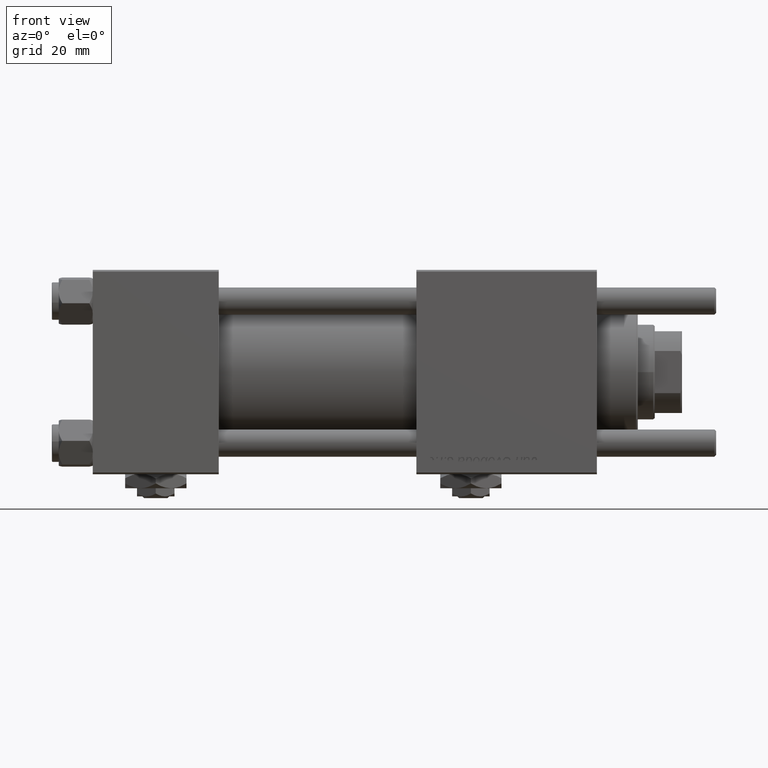
[diagram: clean part render]
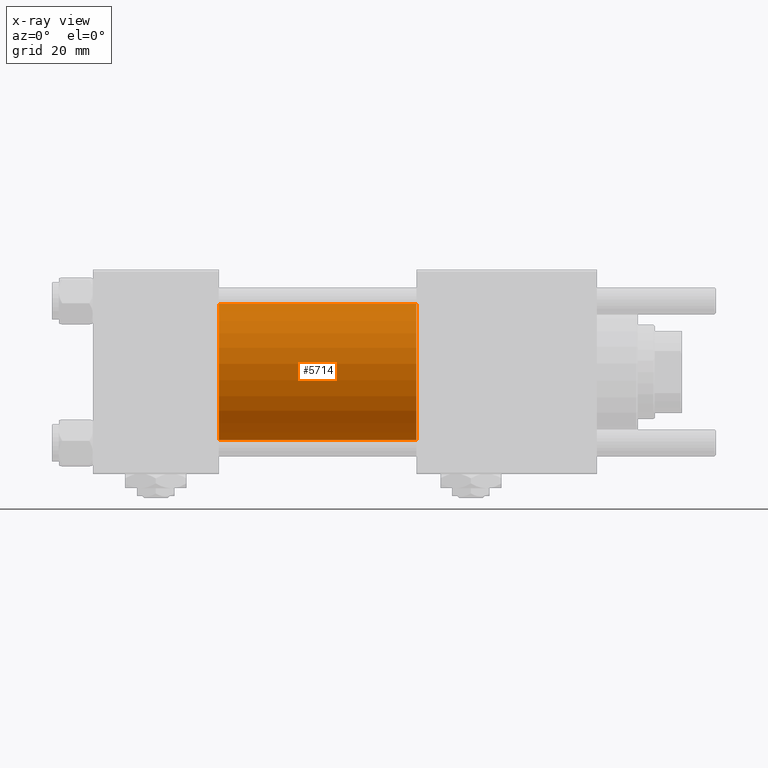
[diagram: x-ray — body ghosted, one internal face saturated and labeled with its STEP entity id]
A machine part, front view, then the same camera in x-ray: the body is ghosted and one INTERNAL B-rep face — a face not visible from any outside direction — is saturated and labeled: STEP entity #5714.
In plain terms, the highlighted cylindrical surface (partial cylindrical patch) has radius 20 mm, axis along (-1, -0, -0).
Its self-contained STEP definition (entity closure, byte-faithful):
#599 = EDGE_CURVE ( 'NONE', #43028, #57982, #22265, .T. ) ;
#3905 = VERTEX_POINT ( 'NONE', #48992 ) ;
#4352 = DIRECTION ( 'NONE',  ( 0.000000000000000000, 0.000000000000000000, -1.000000000000000000 ) ) ;
#5166 = DIRECTION ( 'NONE',  ( 1.000000000000000000, 0.000000000000000000, 0.000000000000000000 ) ) ;
#5545 = EDGE_LOOP ( 'NONE', ( #28153, #34586, #45280, #11302 ) ) ;
#5714 = ADVANCED_FACE ( 'NONE', ( #15540 ), #24780, .F. ) ;
#6184 = AXIS2_PLACEMENT_3D ( 'NONE', #42665, #42958, #19148 ) ;
#7412 = EDGE_CURVE ( 'NONE', #43908, #43028, #50233, .T. ) ;
#9710 = DIRECTION ( 'NONE',  ( -1.000000000000000000, -0.000000000000000000, -0.000000000000000000 ) ) ;
#11302 = ORIENTED_EDGE ( 'NONE', *, *, #7412, .F. ) ;
#15540 = FACE_OUTER_BOUND ( 'NONE', #5545, .T. ) ;
#17650 = CARTESIAN_POINT ( 'NONE',  ( 95.00000000000000000, -2.602085213965210642E-15, 0.000000000000000000 ) ) ;
#19148 = DIRECTION ( 'NONE',  ( 0.000000000000000000, 0.000000000000000000, 1.000000000000000000 ) ) ;
#22265 = CIRCLE ( 'NONE', #35626, 20.00000000000000000 ) ;
#23465 = CARTESIAN_POINT ( 'NONE',  ( 37.00000000000000000, -2.602085213965210642E-15, 20.00000000000000000 ) ) ;
#23690 = DIRECTION ( 'NONE',  ( 1.000000000000000000, 0.000000000000000000, 0.000000000000000000 ) ) ;
#24780 = CYLINDRICAL_SURFACE ( 'NONE', #6184, 20.00000000000000000 ) ;
#28153 = ORIENTED_EDGE ( 'NONE', *, *, #56934, .T. ) ;
#29581 = DIRECTION ( 'NONE',  ( -1.000000000000000000, -0.000000000000000000, -0.000000000000000000 ) ) ;
#30151 = CIRCLE ( 'NONE', #31082, 20.00000000000000000 ) ;
#31082 = AXIS2_PLACEMENT_3D ( 'NONE', #17650, #5166, #45372 ) ;
#32621 = CARTESIAN_POINT ( 'NONE',  ( 37.00000000000000000, -2.602085213965210642E-15, 0.000000000000000000 ) ) ;
#34586 = ORIENTED_EDGE ( 'NONE', *, *, #52991, .T. ) ;
#35626 = AXIS2_PLACEMENT_3D ( 'NONE', #32621, #23690, #4352 ) ;
#37697 = CARTESIAN_POINT ( 'NONE',  ( 95.00000000000000000, -2.602085213965210642E-15, 20.00000000000000000 ) ) ;
#42665 = CARTESIAN_POINT ( 'NONE',  ( 95.00000000000000000, -2.602085213965210642E-15, 0.000000000000000000 ) ) ;
#42958 = DIRECTION ( 'NONE',  ( -1.000000000000000000, -0.000000000000000000, -0.000000000000000000 ) ) ;
#43028 = VERTEX_POINT ( 'NONE', #23465 ) ;
#43908 = VERTEX_POINT ( 'NONE', #47891 ) ;
#45280 = ORIENTED_EDGE ( 'NONE', *, *, #599, .F. ) ;
#45372 = DIRECTION ( 'NONE',  ( 0.000000000000000000, 0.000000000000000000, -1.000000000000000000 ) ) ;
#47482 = CARTESIAN_POINT ( 'NONE',  ( 95.00000000000000000, -1.527916156705046464E-16, -20.00000000000000000 ) ) ;
#47891 = CARTESIAN_POINT ( 'NONE',  ( 95.00000000000000000, -2.602085213965210642E-15, 20.00000000000000000 ) ) ;
#48058 = VECTOR ( 'NONE', #9710, 1000.000000000000000 ) ;
#48992 = CARTESIAN_POINT ( 'NONE',  ( 95.00000000000000000, -1.527916156705046464E-16, -20.00000000000000000 ) ) ;
#49889 = LINE ( 'NONE', #47482, #54820 ) ;
#50233 = LINE ( 'NONE', #37697, #48058 ) ;
#52991 = EDGE_CURVE ( 'NONE', #3905, #57982, #49889, .T. ) ;
#53293 = CARTESIAN_POINT ( 'NONE',  ( 37.00000000000000000, -1.527916156705046464E-16, -20.00000000000000000 ) ) ;
#54820 = VECTOR ( 'NONE', #29581, 1000.000000000000000 ) ;
#56934 = EDGE_CURVE ( 'NONE', #43908, #3905, #30151, .T. ) ;
#57982 = VERTEX_POINT ( 'NONE', #53293 ) ;